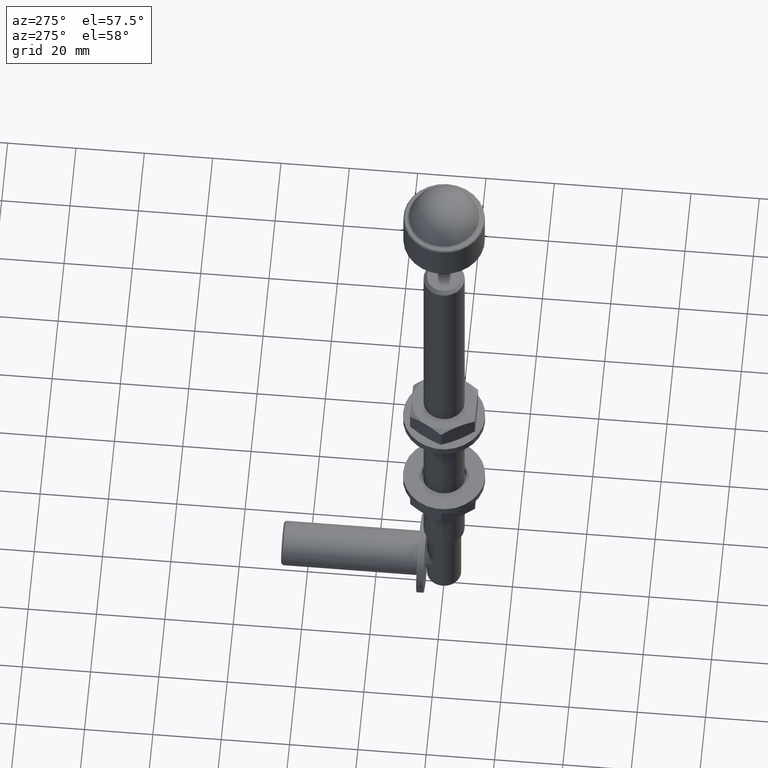
[diagram: clean part render]
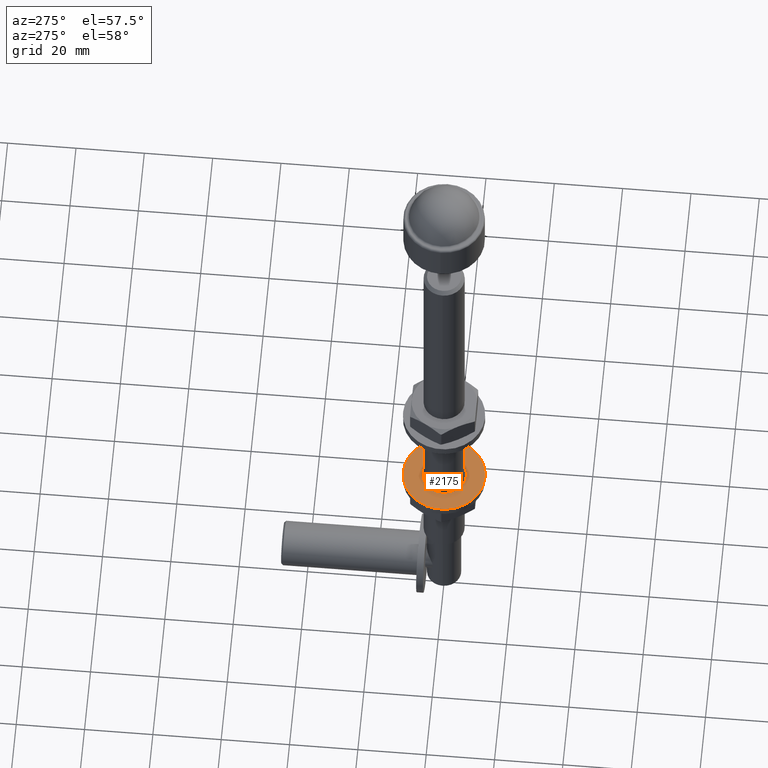
[diagram: same view with one face highlighted and labeled with its STEP entity id]
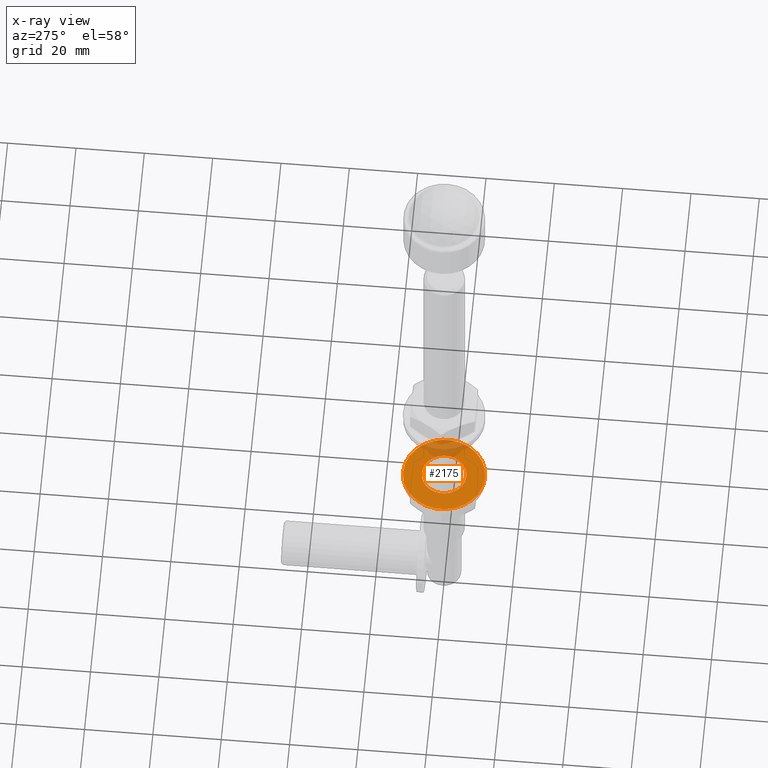
[diagram: x-ray of the same camera — body ghosted, the highlighted face saturated]
A machine part, auxiliary view. The second image highlights one B-rep face of the part: STEP entity #2175.
The next image is the same camera in x-ray: the body ghosted, the highlighted face saturated — about 18% of this face is hidden behind the body in this view.
In plain terms, the highlighted planar face has unit normal (0, 0, -1).
Its self-contained STEP definition (entity closure, byte-faithful):
#1338 = AXIS2_PLACEMENT_3D ( 'NONE', #9628, #2255, #11020 ) ;
#2175 = ADVANCED_FACE ( 'NONE', ( #7196, #9331 ), #15567, .F. ) ;
#2255 = DIRECTION ( 'NONE',  ( 0.000000000000000000, 1.000000000000000000, 0.000000000000000000 ) ) ;
#3393 = CARTESIAN_POINT ( 'NONE',  ( 0.000000000000000000, 0.000000000000000000, 0.000000000000000000 ) ) ;
#3899 = EDGE_CURVE ( 'NONE', #11864, #11864, #8665, .T. ) ;
#5132 = VERTEX_POINT ( 'NONE', #7706 ) ;
#5674 = ORIENTED_EDGE ( 'NONE', *, *, #6345, .T. ) ;
#6340 = AXIS2_PLACEMENT_3D ( 'NONE', #3393, #8283, #10658 ) ;
#6345 = EDGE_CURVE ( 'NONE', #5132, #5132, #9408, .T. ) ;
#7196 = FACE_OUTER_BOUND ( 'NONE', #10423, .T. ) ;
#7706 = CARTESIAN_POINT ( 'NONE',  ( 0.000000000000000000, 0.000000000000000000, 6.500000000000000888 ) ) ;
#8014 = AXIS2_PLACEMENT_3D ( 'NONE', #11109, #13484, #12449 ) ;
#8283 = DIRECTION ( 'NONE',  ( 0.000000000000000000, 1.000000000000000000, 0.000000000000000000 ) ) ;
#8665 = CIRCLE ( 'NONE', #8014, 12.00000000000000178 ) ;
#9331 = FACE_BOUND ( 'NONE', #12334, .T. ) ;
#9408 = CIRCLE ( 'NONE', #1338, 6.500000000000000888 ) ;
#9628 = CARTESIAN_POINT ( 'NONE',  ( 0.000000000000000000, 0.000000000000000000, 0.000000000000000000 ) ) ;
#10356 = CARTESIAN_POINT ( 'NONE',  ( 0.000000000000000000, 0.000000000000000000, 12.00000000000000178 ) ) ;
#10423 = EDGE_LOOP ( 'NONE', ( #13389 ) ) ;
#10658 = DIRECTION ( 'NONE',  ( 0.000000000000000000, -0.000000000000000000, 1.000000000000000000 ) ) ;
#11020 = DIRECTION ( 'NONE',  ( 0.000000000000000000, 0.000000000000000000, 1.000000000000000000 ) ) ;
#11109 = CARTESIAN_POINT ( 'NONE',  ( 0.000000000000000000, 0.000000000000000000, 0.000000000000000000 ) ) ;
#11864 = VERTEX_POINT ( 'NONE', #10356 ) ;
#12334 = EDGE_LOOP ( 'NONE', ( #5674 ) ) ;
#12449 = DIRECTION ( 'NONE',  ( 0.000000000000000000, 0.000000000000000000, 1.000000000000000000 ) ) ;
#13389 = ORIENTED_EDGE ( 'NONE', *, *, #3899, .F. ) ;
#13484 = DIRECTION ( 'NONE',  ( 0.000000000000000000, 1.000000000000000000, 0.000000000000000000 ) ) ;
#15567 = PLANE ( 'NONE',  #6340 ) ;